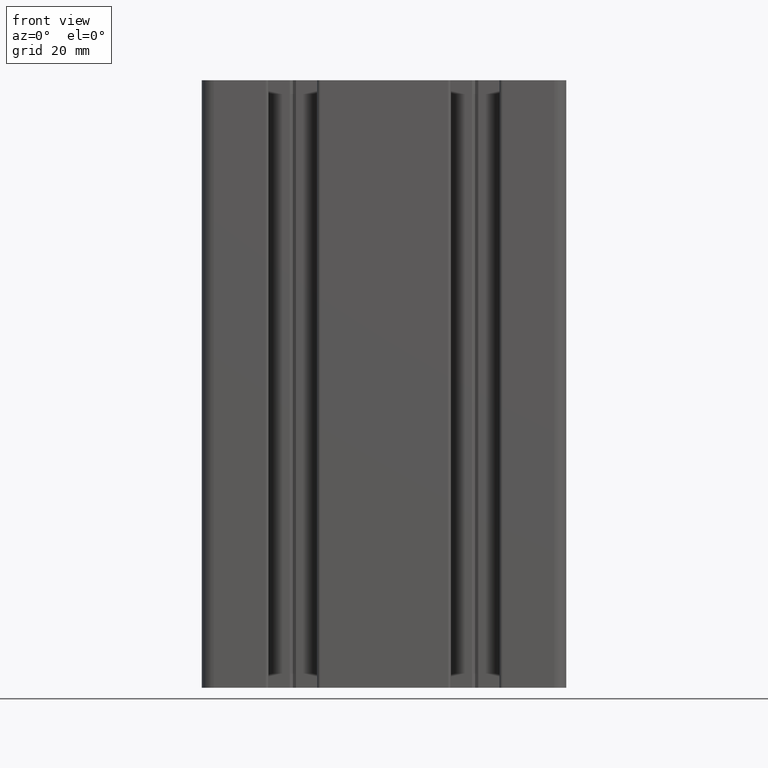
[diagram: clean part render]
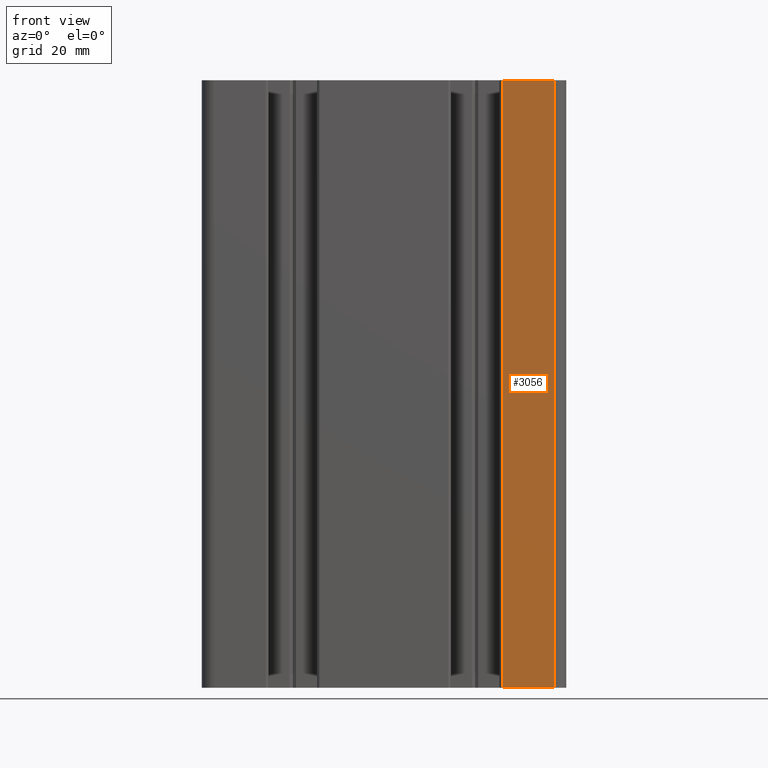
[diagram: same view with one face highlighted and labeled with its STEP entity id]
A machine part, front view. The second image highlights one B-rep face of the part: STEP entity #3056.
In plain terms, the highlighted planar face has unit normal (0, -1, 0).
Its self-contained STEP definition (entity closure, byte-faithful):
#358=FACE_OUTER_BOUND('',#511,.T.);
#511=EDGE_LOOP('',(#2494,#2495,#2496,#2497));
#738=LINE('',#4747,#1063);
#853=LINE('',#5064,#1178);
#854=LINE('',#5066,#1179);
#855=LINE('',#5067,#1180);
#1063=VECTOR('',#3856,100.);
#1178=VECTOR('',#4161,8.49999766697443);
#1179=VECTOR('',#4162,100.);
#1180=VECTOR('',#4163,8.49999766697443);
#1371=VERTEX_POINT('',#4743);
#1372=VERTEX_POINT('',#4745);
#1479=VERTEX_POINT('',#5063);
#1480=VERTEX_POINT('',#5065);
#1756=EDGE_CURVE('',#1371,#1372,#738,.T.);
#1913=EDGE_CURVE('',#1479,#1372,#853,.T.);
#1914=EDGE_CURVE('',#1479,#1480,#854,.T.);
#1915=EDGE_CURVE('',#1480,#1371,#855,.T.);
#2494=ORIENTED_EDGE('',*,*,#1756,.T.);
#2495=ORIENTED_EDGE('',*,*,#1913,.F.);
#2496=ORIENTED_EDGE('',*,*,#1914,.T.);
#2497=ORIENTED_EDGE('',*,*,#1915,.T.);
#2909=PLANE('',#3321);
#3056=ADVANCED_FACE('',(#358),#2909,.T.);
#3321=AXIS2_PLACEMENT_3D('',#5062,#4159,#4160);
#3856=DIRECTION('',(0.,0.,-1.));
#4159=DIRECTION('center_axis',(7.93016446160826E-17,-1.,0.));
#4160=DIRECTION('ref_axis',(1.,0.,0.));
#4161=DIRECTION('',(-1.,-7.93016446160826E-17,0.));
#4162=DIRECTION('',(0.,0.,1.));
#4163=DIRECTION('',(-1.,-7.93016446160826E-17,0.));
#4743=CARTESIAN_POINT('',(19.4999990030256,-14.99999667,100.));
#4745=CARTESIAN_POINT('',(19.4999990030256,-14.99999667,0.));
#4747=CARTESIAN_POINT('',(19.4999990030256,-14.99999667,0.));
#5062=CARTESIAN_POINT('Origin',(-28.00000333,-14.99999667,0.));
#5063=CARTESIAN_POINT('',(27.99999667,-14.99999667,0.));
#5064=CARTESIAN_POINT('',(-14.00000333,-14.99999667,0.));
#5065=CARTESIAN_POINT('',(27.99999667,-14.99999667,100.));
#5066=CARTESIAN_POINT('',(27.99999667,-14.99999667,0.));
#5067=CARTESIAN_POINT('',(-14.00000333,-14.99999667,100.));